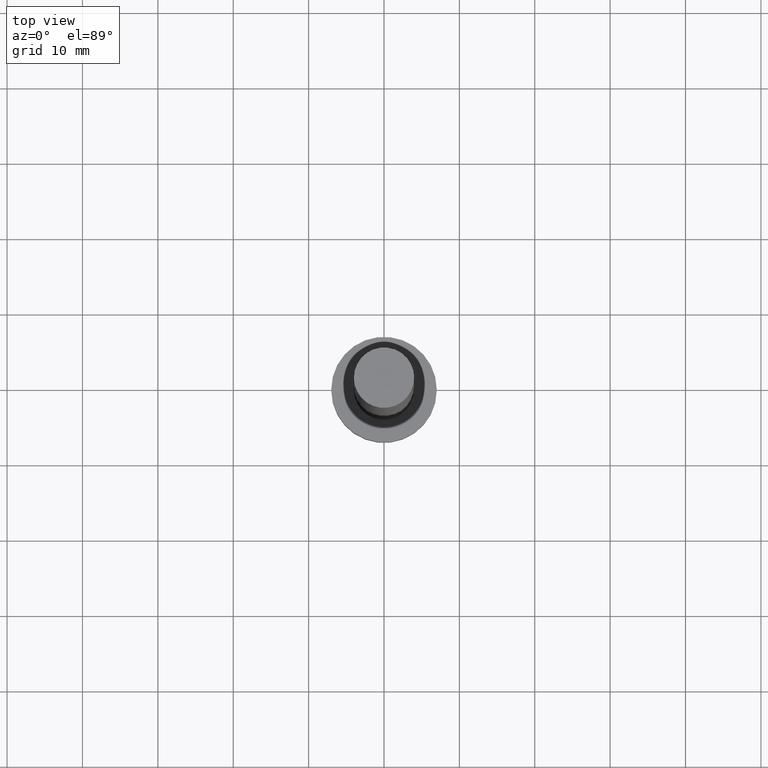
[diagram: clean part render]
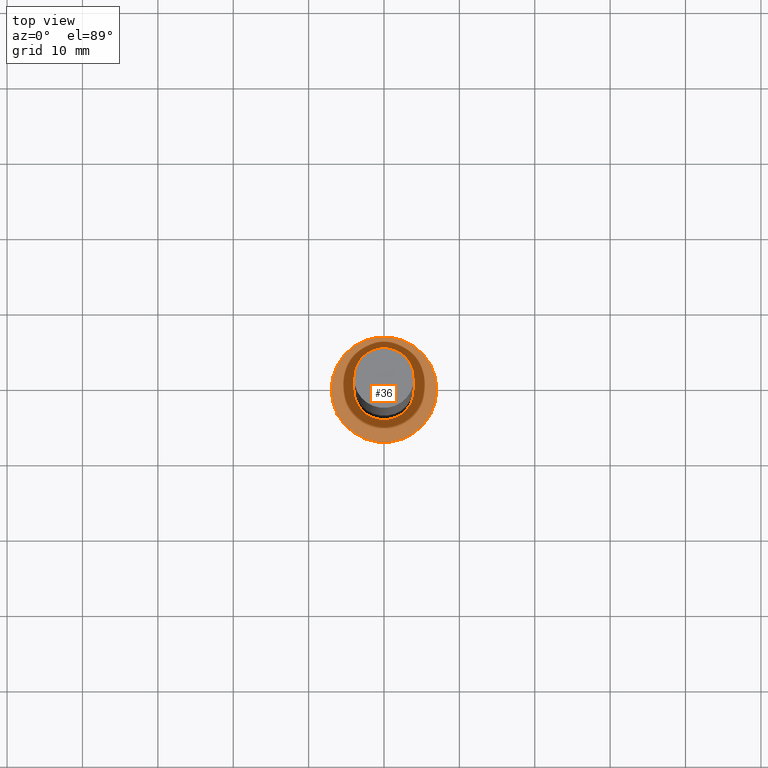
[diagram: same view with one face highlighted and labeled with its STEP entity id]
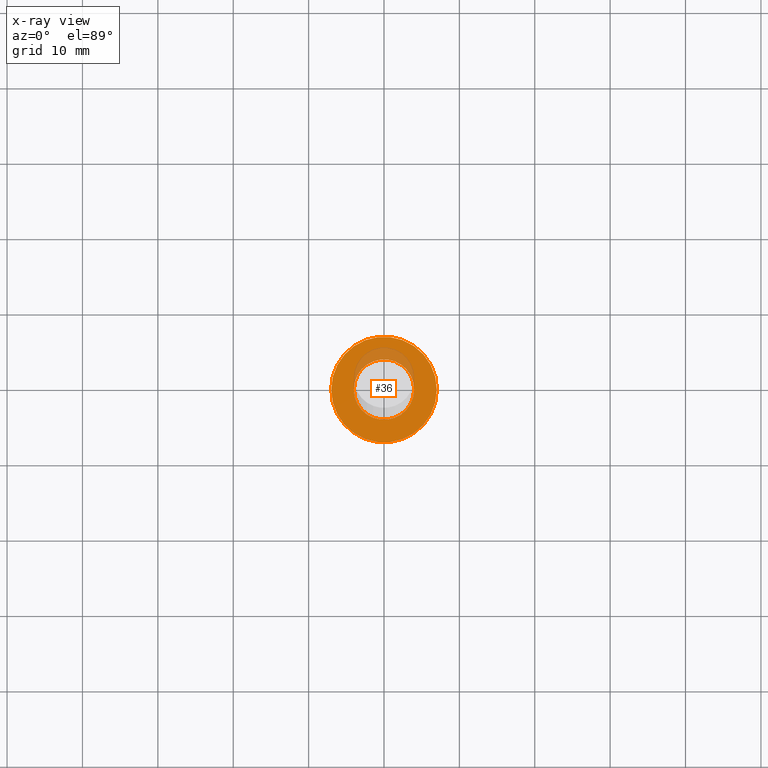
[diagram: x-ray of the same camera — body ghosted, the highlighted face saturated]
A machine part, top view. The second image highlights one B-rep face of the part: STEP entity #36.
The next image is the same camera in x-ray: the body ghosted, the highlighted face saturated — about 12% of this face is hidden behind the body in this view.
In plain terms, the highlighted planar face has unit normal (0, 0, 1).
Its self-contained STEP definition (entity closure, byte-faithful):
#3 = ORIENTED_EDGE ( 'NONE', *, *, #147, .F. ) ;
#6 = DIRECTION ( 'NONE',  ( 0.000000000000000000, 0.000000000000000000, 1.000000000000000000 ) ) ;
#12 = DIRECTION ( 'NONE',  ( 1.000000000000000000, 0.000000000000000000, -0.000000000000000000 ) ) ;
#27 = CARTESIAN_POINT ( 'NONE',  ( 0.000000000000000000, 0.000000000000000000, 5.000000000000000000 ) ) ;
#28 = EDGE_LOOP ( 'NONE', ( #240, #3 ) ) ;
#34 = AXIS2_PLACEMENT_3D ( 'NONE', #195, #194, #12 ) ;
#36 = ADVANCED_FACE ( 'NONE', ( #124, #151 ), #51, .T. ) ;
#44 = VERTEX_POINT ( 'NONE', #72 ) ;
#51 = PLANE ( 'NONE',  #34 ) ;
#54 = CARTESIAN_POINT ( 'NONE',  ( 0.000000000000000000, 0.000000000000000000, 5.000000000000000000 ) ) ;
#57 = VERTEX_POINT ( 'NONE', #153 ) ;
#63 = AXIS2_PLACEMENT_3D ( 'NONE', #100, #192, #248 ) ;
#72 = CARTESIAN_POINT ( 'NONE',  ( 7.000000000000000000, 8.572527594031473190E-16, 5.000000000000000000 ) ) ;
#82 = ORIENTED_EDGE ( 'NONE', *, *, #90, .T. ) ;
#90 = EDGE_CURVE ( 'NONE', #114, #44, #128, .T. ) ;
#96 = VERTEX_POINT ( 'NONE', #211 ) ;
#97 = ORIENTED_EDGE ( 'NONE', *, *, #138, .T. ) ;
#100 = CARTESIAN_POINT ( 'NONE',  ( 0.000000000000000000, 0.000000000000000000, 5.000000000000000000 ) ) ;
#104 = EDGE_CURVE ( 'NONE', #96, #57, #109, .T. ) ;
#106 = CIRCLE ( 'NONE', #63, 4.000000000000000000 ) ;
#107 = DIRECTION ( 'NONE',  ( 1.000000000000000000, 0.000000000000000000, 0.000000000000000000 ) ) ;
#109 = CIRCLE ( 'NONE', #150, 4.000000000000000000 ) ;
#114 = VERTEX_POINT ( 'NONE', #224 ) ;
#124 = FACE_BOUND ( 'NONE', #28, .T. ) ;
#128 = CIRCLE ( 'NONE', #236, 7.000000000000000000 ) ;
#129 = AXIS2_PLACEMENT_3D ( 'NONE', #27, #6, #217 ) ;
#138 = EDGE_CURVE ( 'NONE', #44, #114, #180, .T. ) ;
#146 = EDGE_LOOP ( 'NONE', ( #82, #97 ) ) ;
#147 = EDGE_CURVE ( 'NONE', #57, #96, #106, .T. ) ;
#150 = AXIS2_PLACEMENT_3D ( 'NONE', #253, #228, #250 ) ;
#151 = FACE_OUTER_BOUND ( 'NONE', #146, .T. ) ;
#153 = CARTESIAN_POINT ( 'NONE',  ( 4.000000000000000000, 4.898587196589411843E-16, 5.000000000000000000 ) ) ;
#154 = DIRECTION ( 'NONE',  ( 0.000000000000000000, 0.000000000000000000, 1.000000000000000000 ) ) ;
#180 = CIRCLE ( 'NONE', #129, 7.000000000000000000 ) ;
#192 = DIRECTION ( 'NONE',  ( 0.000000000000000000, 0.000000000000000000, 1.000000000000000000 ) ) ;
#194 = DIRECTION ( 'NONE',  ( 0.000000000000000000, 0.000000000000000000, 1.000000000000000000 ) ) ;
#195 = CARTESIAN_POINT ( 'NONE',  ( 0.000000000000000000, 0.000000000000000000, 5.000000000000000000 ) ) ;
#211 = CARTESIAN_POINT ( 'NONE',  ( -4.000000000000000000, 0.000000000000000000, 5.000000000000000000 ) ) ;
#217 = DIRECTION ( 'NONE',  ( 1.000000000000000000, 0.000000000000000000, 0.000000000000000000 ) ) ;
#224 = CARTESIAN_POINT ( 'NONE',  ( -7.000000000000000000, 0.000000000000000000, 5.000000000000000000 ) ) ;
#228 = DIRECTION ( 'NONE',  ( 0.000000000000000000, 0.000000000000000000, 1.000000000000000000 ) ) ;
#236 = AXIS2_PLACEMENT_3D ( 'NONE', #54, #154, #107 ) ;
#240 = ORIENTED_EDGE ( 'NONE', *, *, #104, .F. ) ;
#248 = DIRECTION ( 'NONE',  ( 1.000000000000000000, 0.000000000000000000, 0.000000000000000000 ) ) ;
#250 = DIRECTION ( 'NONE',  ( 1.000000000000000000, 0.000000000000000000, 0.000000000000000000 ) ) ;
#253 = CARTESIAN_POINT ( 'NONE',  ( 0.000000000000000000, 0.000000000000000000, 5.000000000000000000 ) ) ;